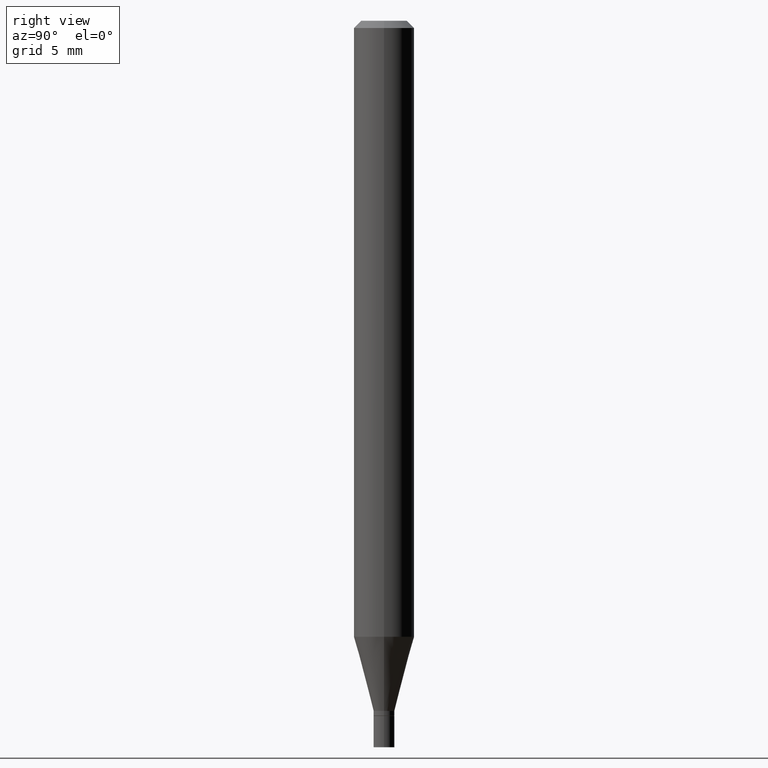
[diagram: clean part render]
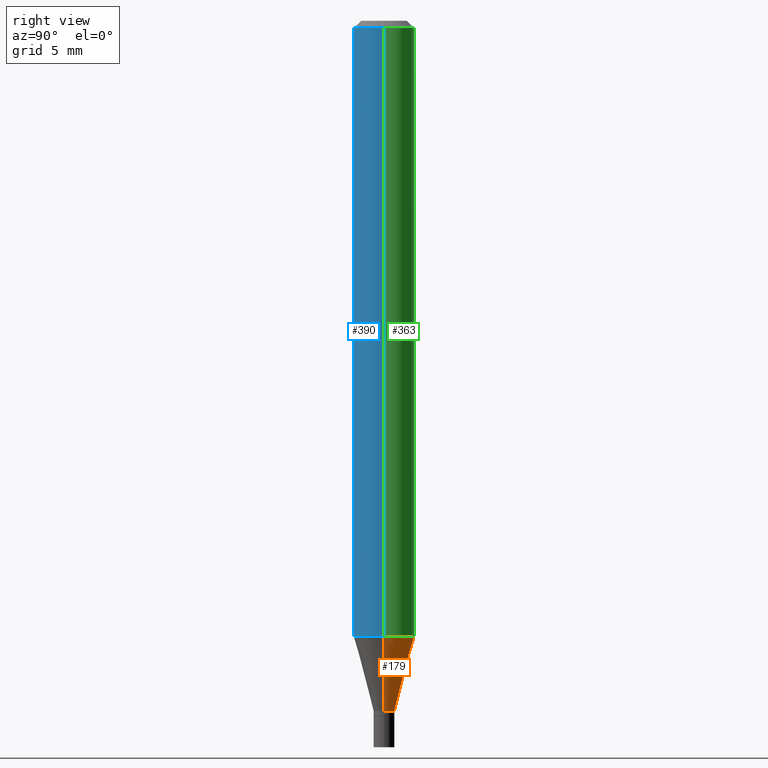
[diagram: same view with three faces highlighted in distinct colors, each labeled with its STEP entity id]
A machine part, right view with three faces highlighted in distinct colors.
Their STEP definitions:

[orange] entity #179 — the highlighted conical surface has half-angle 15 deg.
#33 = AXIS2_PLACEMENT_3D ( 'NONE', #188, #94, #235 ) ;
#40 = CIRCLE ( 'NONE', #33, 0.06250000000000000000 ) ;
#49 = VERTEX_POINT ( 'NONE', #288 ) ;
#57 = ORIENTED_EDGE ( 'NONE', *, *, #350, .F. ) ;
#61 = ORIENTED_EDGE ( 'NONE', *, *, #399, .T. ) ;
#62 = CARTESIAN_POINT ( 'NONE',  ( 3.484793048813820547E-29, -4.975360907851483175E-15, -1.425000000000000266 ) ) ;
#94 = DIRECTION ( 'NONE',  ( -2.445468806185136597E-29, 3.491481338843145583E-15, 1.000000000000000000 ) ) ;
#96 = DIRECTION ( 'NONE',  ( 0.2588190451025213501, 1.565188264969621968E-15, 0.9659258262890682012 ) ) ;
#97 = VECTOR ( 'NONE', #291, 39.37007874015747433 ) ;
#100 = VERTEX_POINT ( 'NONE', #187 ) ;
#107 = ORIENTED_EDGE ( 'NONE', *, *, #138, .T. ) ;
#113 = VERTEX_POINT ( 'NONE', #268 ) ;
#131 = DIRECTION ( 'NONE',  ( 1.000000000000000000, -6.982962677686246989E-15, 0.000000000000000000 ) ) ;
#136 = AXIS2_PLACEMENT_3D ( 'NONE', #280, #213, #141 ) ;
#138 = EDGE_CURVE ( 'NONE', #113, #100, #173, .T. ) ;
#139 = AXIS2_PLACEMENT_3D ( 'NONE', #62, #165, #131 ) ;
#141 = DIRECTION ( 'NONE',  ( 1.000000000000000000, -6.982962677686246989E-15, 0.000000000000000000 ) ) ;
#144 = EDGE_LOOP ( 'NONE', ( #107, #61, #57, #276 ) ) ;
#150 = LINE ( 'NONE', #444, #97 ) ;
#165 = DIRECTION ( 'NONE',  ( -2.445468806185136597E-29, 3.491481338843145583E-15, 1.000000000000000000 ) ) ;
#173 = CIRCLE ( 'NONE', #136, 0.02149999999999991501 ) ;
#179 = ADVANCED_FACE ( 'NONE', ( #319 ), #397, .T. ) ;
#187 = CARTESIAN_POINT ( 'NONE',  ( -0.02149999999999991501, -4.409810050952296864E-15, -1.425000000000000266 ) ) ;
#188 = CARTESIAN_POINT ( 'NONE',  ( 3.110601881660502602E-29, -4.441115092091593662E-15, -1.271985916889676327 ) ) ;
#205 = CARTESIAN_POINT ( 'NONE',  ( 0.02149999999999991501, -5.125494605421737215E-15, -1.425000000000000266 ) ) ;
#213 = DIRECTION ( 'NONE',  ( -2.445468806185136597E-29, 3.491481338843145583E-15, 1.000000000000000000 ) ) ;
#235 = DIRECTION ( 'NONE',  ( 1.000000000000000000, -6.982962677686262766E-15, 0.000000000000000000 ) ) ;
#268 = CARTESIAN_POINT ( 'NONE',  ( 0.02149999999999991501, -5.125494605421737215E-15, -1.425000000000000266 ) ) ;
#276 = ORIENTED_EDGE ( 'NONE', *, *, #437, .F. ) ;
#280 = CARTESIAN_POINT ( 'NONE',  ( 3.484793048813820547E-29, -4.975360907851483175E-15, -1.425000000000000266 ) ) ;
#286 = VERTEX_POINT ( 'NONE', #357 ) ;
#288 = CARTESIAN_POINT ( 'NONE',  ( 0.06250000000000001388, -4.877550259446984543E-15, -1.271985916889676327 ) ) ;
#291 = DIRECTION ( 'NONE',  ( -0.2588190451025213501, 5.211531920934551042E-15, 0.9659258262890682012 ) ) ;
#319 = FACE_OUTER_BOUND ( 'NONE', #144, .T. ) ;
#333 = VECTOR ( 'NONE', #96, 39.37007874015747433 ) ;
#350 = EDGE_CURVE ( 'NONE', #49, #286, #40, .T. ) ;
#357 = CARTESIAN_POINT ( 'NONE',  ( -0.06250000000000001388, -3.997025882241531046E-15, -1.271985916889676327 ) ) ;
#397 = CONICAL_SURFACE ( 'NONE', #139, 0.02149999999999991501, 0.2617993877991500740 ) ;
#399 = EDGE_CURVE ( 'NONE', #100, #286, #150, .T. ) ;
#415 = LINE ( 'NONE', #205, #333 ) ;
#437 = EDGE_CURVE ( 'NONE', #113, #49, #415, .T. ) ;
#444 = CARTESIAN_POINT ( 'NONE',  ( -0.02149999999999991501, -4.822594219663062683E-15, -1.425000000000000266 ) ) ;

[blue] entity #390 — the highlighted cylindrical surface (edge-blend (fillet) strip) has radius 1.5875 mm, axis along (-0, 0, 1).
#17 = FACE_OUTER_BOUND ( 'NONE', #306, .T. ) ;
#21 = DIRECTION ( 'NONE',  ( -2.445468806185136597E-29, 3.491481338843145583E-15, 1.000000000000000000 ) ) ;
#31 = DIRECTION ( 'NONE',  ( -2.445468806185136597E-29, 3.491481338843145583E-15, 1.000000000000000000 ) ) ;
#38 = CARTESIAN_POINT ( 'NONE',  ( -0.06250000000000000000, 4.440892098500626162E-16, -3.074334431409316114E-30 ) ) ;
#49 = VERTEX_POINT ( 'NONE', #288 ) ;
#64 = LINE ( 'NONE', #137, #143 ) ;
#78 = ORIENTED_EDGE ( 'NONE', *, *, #210, .T. ) ;
#119 = CIRCLE ( 'NONE', #238, 0.06250000000000000000 ) ;
#132 = AXIS2_PLACEMENT_3D ( 'NONE', #354, #31, #170 ) ;
#135 = LINE ( 'NONE', #38, #226 ) ;
#137 = CARTESIAN_POINT ( 'NONE',  ( 0.06250000000000000000, -4.364351673553916694E-16, 3.047610484872459871E-30 ) ) ;
#143 = VECTOR ( 'NONE', #457, 39.37007874015748143 ) ;
#170 = DIRECTION ( 'NONE',  ( 1.000000000000000000, -6.982962677686266711E-15, 0.000000000000000000 ) ) ;
#178 = VERTEX_POINT ( 'NONE', #249 ) ;
#203 = DIRECTION ( 'NONE',  ( -2.445468806185136597E-29, 3.491481338843145583E-15, 1.000000000000000000 ) ) ;
#210 = EDGE_CURVE ( 'NONE', #49, #324, #64, .T. ) ;
#211 = EDGE_CURVE ( 'NONE', #286, #49, #119, .T. ) ;
#226 = VECTOR ( 'NONE', #278, 39.37007874015748143 ) ;
#238 = AXIS2_PLACEMENT_3D ( 'NONE', #275, #203, #452 ) ;
#249 = CARTESIAN_POINT ( 'NONE',  ( -0.06250000000000000000, -1.802654446237057557E-15, -0.01499999999999999944 ) ) ;
#266 = ORIENTED_EDGE ( 'NONE', *, *, #295, .F. ) ;
#269 = CARTESIAN_POINT ( 'NONE',  ( 0.06250000000000000000, -4.888073874380388472E-16, -0.01499999999999999944 ) ) ;
#275 = CARTESIAN_POINT ( 'NONE',  ( 3.110601881660502602E-29, -4.441115092091593662E-15, -1.271985916889676327 ) ) ;
#278 = DIRECTION ( 'NONE',  ( -2.445468806185136877E-29, 3.491481338843145188E-15, 1.000000000000000000 ) ) ;
#286 = VERTEX_POINT ( 'NONE', #357 ) ;
#288 = CARTESIAN_POINT ( 'NONE',  ( 0.06250000000000001388, -4.877550259446984543E-15, -1.271985916889676327 ) ) ;
#295 = EDGE_CURVE ( 'NONE', #286, #178, #135, .T. ) ;
#297 = DIRECTION ( 'NONE',  ( 1.000000000000000000, -6.982962677686266711E-15, 4.876176775795935793E-29 ) ) ;
#306 = EDGE_LOOP ( 'NONE', ( #266, #381, #78, #314 ) ) ;
#314 = ORIENTED_EDGE ( 'NONE', *, *, #465, .F. ) ;
#324 = VERTEX_POINT ( 'NONE', #269 ) ;
#354 = CARTESIAN_POINT ( 'NONE',  ( 3.668203209277705088E-31, -5.237222008264718399E-17, -0.01499999999999999944 ) ) ;
#357 = CARTESIAN_POINT ( 'NONE',  ( -0.06250000000000001388, -3.997025882241531046E-15, -1.271985916889676327 ) ) ;
#361 = AXIS2_PLACEMENT_3D ( 'NONE', #436, #21, #297 ) ;
#365 = CIRCLE ( 'NONE', #132, 0.06250000000000000000 ) ;
#381 = ORIENTED_EDGE ( 'NONE', *, *, #211, .T. ) ;
#390 = ADVANCED_FACE ( 'NONE', ( #17 ), #433, .T. ) ;
#433 = CYLINDRICAL_SURFACE ( 'NONE', #361, 0.06250000000000000000 ) ;
#436 = CARTESIAN_POINT ( 'NONE',  ( 0.000000000000000000, 0.000000000000000000, 0.000000000000000000 ) ) ;
#452 = DIRECTION ( 'NONE',  ( 1.000000000000000000, -6.982962677686262766E-15, 0.000000000000000000 ) ) ;
#457 = DIRECTION ( 'NONE',  ( -2.445468806185136877E-29, 3.491481338843145188E-15, 1.000000000000000000 ) ) ;
#465 = EDGE_CURVE ( 'NONE', #178, #324, #365, .T. ) ;

[green] entity #363 — the highlighted cylindrical surface (edge-blend (fillet) strip) has radius 1.5875 mm, axis along (-0, 0, 1).
#23 = FACE_OUTER_BOUND ( 'NONE', #75, .T. ) ;
#33 = AXIS2_PLACEMENT_3D ( 'NONE', #188, #94, #235 ) ;
#38 = CARTESIAN_POINT ( 'NONE',  ( -0.06250000000000000000, 4.440892098500626162E-16, -3.074334431409316114E-30 ) ) ;
#40 = CIRCLE ( 'NONE', #33, 0.06250000000000000000 ) ;
#46 = DIRECTION ( 'NONE',  ( 1.000000000000000000, -6.982962677686266711E-15, 0.000000000000000000 ) ) ;
#49 = VERTEX_POINT ( 'NONE', #288 ) ;
#55 = DIRECTION ( 'NONE',  ( 1.000000000000000000, -6.982962677686266711E-15, 4.876176775795935793E-29 ) ) ;
#64 = LINE ( 'NONE', #137, #143 ) ;
#75 = EDGE_LOOP ( 'NONE', ( #389, #431, #432, #254 ) ) ;
#87 = CARTESIAN_POINT ( 'NONE',  ( 3.668203209277705088E-31, -5.237222008264718399E-17, -0.01499999999999999944 ) ) ;
#94 = DIRECTION ( 'NONE',  ( -2.445468806185136597E-29, 3.491481338843145583E-15, 1.000000000000000000 ) ) ;
#135 = LINE ( 'NONE', #38, #226 ) ;
#137 = CARTESIAN_POINT ( 'NONE',  ( 0.06250000000000000000, -4.364351673553916694E-16, 3.047610484872459871E-30 ) ) ;
#143 = VECTOR ( 'NONE', #457, 39.37007874015748143 ) ;
#178 = VERTEX_POINT ( 'NONE', #249 ) ;
#188 = CARTESIAN_POINT ( 'NONE',  ( 3.110601881660502602E-29, -4.441115092091593662E-15, -1.271985916889676327 ) ) ;
#210 = EDGE_CURVE ( 'NONE', #49, #324, #64, .T. ) ;
#212 = CIRCLE ( 'NONE', #460, 0.06250000000000000000 ) ;
#220 = AXIS2_PLACEMENT_3D ( 'NONE', #438, #366, #55 ) ;
#226 = VECTOR ( 'NONE', #278, 39.37007874015748143 ) ;
#235 = DIRECTION ( 'NONE',  ( 1.000000000000000000, -6.982962677686262766E-15, 0.000000000000000000 ) ) ;
#249 = CARTESIAN_POINT ( 'NONE',  ( -0.06250000000000000000, -1.802654446237057557E-15, -0.01499999999999999944 ) ) ;
#254 = ORIENTED_EDGE ( 'NONE', *, *, #210, .F. ) ;
#269 = CARTESIAN_POINT ( 'NONE',  ( 0.06250000000000000000, -4.888073874380388472E-16, -0.01499999999999999944 ) ) ;
#278 = DIRECTION ( 'NONE',  ( -2.445468806185136877E-29, 3.491481338843145188E-15, 1.000000000000000000 ) ) ;
#286 = VERTEX_POINT ( 'NONE', #357 ) ;
#288 = CARTESIAN_POINT ( 'NONE',  ( 0.06250000000000001388, -4.877550259446984543E-15, -1.271985916889676327 ) ) ;
#289 = CYLINDRICAL_SURFACE ( 'NONE', #220, 0.06250000000000000000 ) ;
#295 = EDGE_CURVE ( 'NONE', #286, #178, #135, .T. ) ;
#324 = VERTEX_POINT ( 'NONE', #269 ) ;
#350 = EDGE_CURVE ( 'NONE', #49, #286, #40, .T. ) ;
#357 = CARTESIAN_POINT ( 'NONE',  ( -0.06250000000000001388, -3.997025882241531046E-15, -1.271985916889676327 ) ) ;
#363 = ADVANCED_FACE ( 'NONE', ( #23 ), #289, .T. ) ;
#366 = DIRECTION ( 'NONE',  ( -2.445468806185136597E-29, 3.491481338843145583E-15, 1.000000000000000000 ) ) ;
#376 = DIRECTION ( 'NONE',  ( -2.445468806185136597E-29, 3.491481338843145583E-15, 1.000000000000000000 ) ) ;
#389 = ORIENTED_EDGE ( 'NONE', *, *, #350, .T. ) ;
#401 = EDGE_CURVE ( 'NONE', #324, #178, #212, .T. ) ;
#431 = ORIENTED_EDGE ( 'NONE', *, *, #295, .T. ) ;
#432 = ORIENTED_EDGE ( 'NONE', *, *, #401, .F. ) ;
#438 = CARTESIAN_POINT ( 'NONE',  ( 0.000000000000000000, 0.000000000000000000, 0.000000000000000000 ) ) ;
#457 = DIRECTION ( 'NONE',  ( -2.445468806185136877E-29, 3.491481338843145188E-15, 1.000000000000000000 ) ) ;
#460 = AXIS2_PLACEMENT_3D ( 'NONE', #87, #376, #46 ) ;